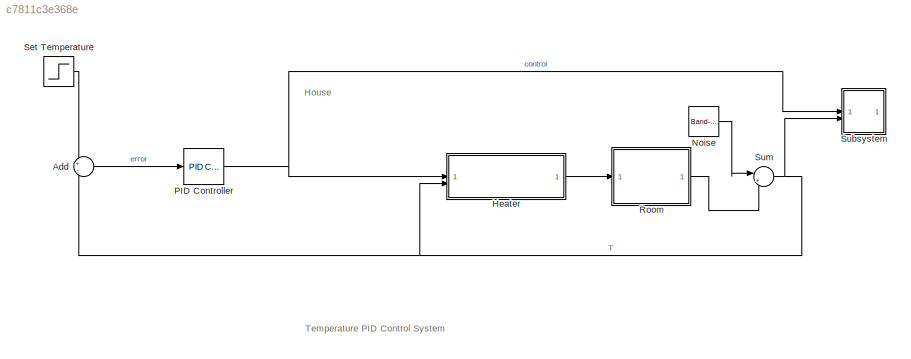
MODEL slx_c7811c3e368e
KIND model
CONFIG AbsTol = auto
CONFIG EnableMultiTasking = off
CONFIG FixedStep = auto
CONFIG MaxStep = auto
CONFIG MinStep = auto
CONFIG RelTol = 1e-3
CONFIG SampleTimeConstraint = Unconstrained
CONFIG SolverName = VariableStepAuto
CONFIG StartTime = 0.0
CONFIG StopTime = 10.0
BLOCK [Sum] Add
  Inputs = +-
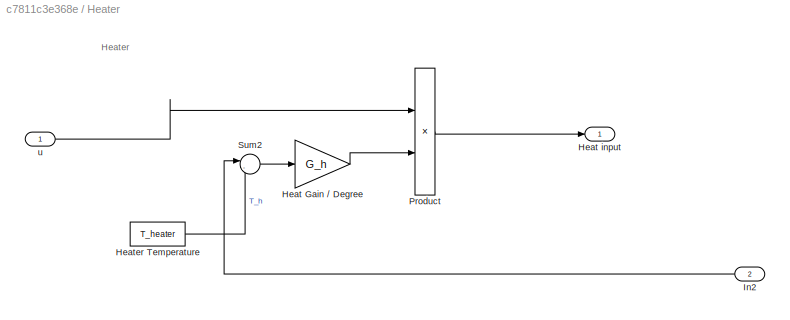
BLOCK [SubSystem] Heater
BLOCK [Gain] Heater/Heat Gain // Degree
  Gain = G_h
BLOCK [Outport] Heater/Heat input
BLOCK [Constant] Heater/Heater Temperature
  Value = T_heater
  VectorParams1D = off
BLOCK [Inport] Heater/In2
  Port = 2
BLOCK [Product] Heater/Product
  RndMeth = Zero
BLOCK [Sum] Heater/Sum2
  Inputs = |-+
BLOCK [Inport] Heater/u
BLOCK [Reference] Noise  REF=simulink/Sources/Band-Limited
White Noise
  NameLocation = left
  SourceBlock = simulink/Sources/Band-Limited\nWhite Noise
  SourceType = Band-Limited White Noise.
BLOCK [Reference] PID Controller  REF=slpidlib/PID Controller
  LibrarySourceBlock = simulink/Continuous/PID Controller
  SourceBlock = slpidlib/PID Controller
  SourceType = PID 1dof
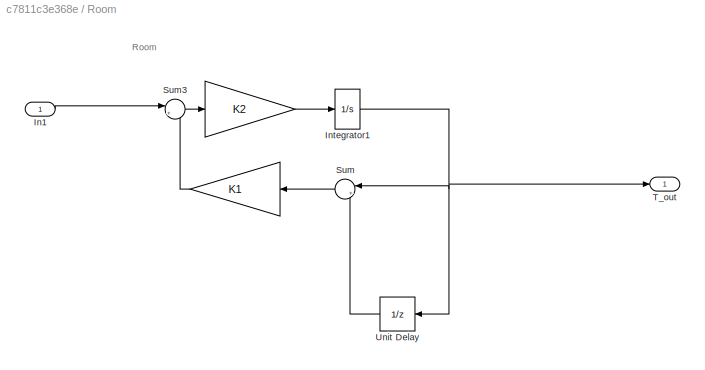
BLOCK [SubSystem] Room
BLOCK [Gain] Room/ 
  Gain = K1
  OutDataTypeStr = Inherit: Same as input
  ParamDataTypeStr = Inherit: Same as input
  SaturateOnIntegerOverflow = on
BLOCK [Gain] Room/  
  Gain = K2
  OutDataTypeStr = Inherit: Same as input
  ParamDataTypeStr = Inherit: Same as input
  SaturateOnIntegerOverflow = on
BLOCK [Inport] Room/In1
BLOCK [Integrator] Room/Integrator1
BLOCK [Sum] Room/Sum
  Inputs = |+-
BLOCK [Sum] Room/Sum3
  InputSameDT = on
  Inputs = |+-
  OutDataTypeStr = Inherit: Same as first input
  SaturateOnIntegerOverflow = on
BLOCK [Outport] Room/T_out
BLOCK [UnitDelay] Room/Unit Delay
  HasFrameUpgradeWarning = on
  NameLocation = top
  SampleTime = 0.001
BLOCK [Step] Set Temperature
  After = setTemp
  NameLocation = left
  SampleTime = 0
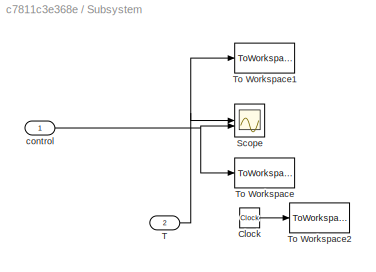
BLOCK [SubSystem] Subsystem
BLOCK [Clock] Subsystem/Clock
BLOCK [Scope] Subsystem/Scope
  Floating = off
  NumInputPorts = 2
  ScopeSpecificationString = Simulink.scopes.TimeScopeBlockCfg('CurrentConfiguration', extmgr.ConfigurationSet(extmgr.Configuration('Core','General UI',true,'DisplayFullSourceName',true),extmgr.Configuration('Core','Source UI',true),extmgr.Configuration('Sources','WiredSimulink',true),extmgr.Configuration('Visuals','Time Domain',true,'SerializedDisplays',{struct('MinYLimReal','-1.07399','MaxYLimReal','6.25965','YLabelReal',''...<+2205ch>
BLOCK [Inport] Subsystem/T
  Port = 2
BLOCK [ToWorkspace] Subsystem/To Workspace
  FixptAsFi = on
  MaxDataPoints = inf
  Save2DSignal = 2-D array (concatenate along first dimension)
  VariableName = control
BLOCK [ToWorkspace] Subsystem/To Workspace1
  FixptAsFi = on
  MaxDataPoints = inf
  Save2DSignal = 2-D array (concatenate along first dimension)
  VariableName = T
BLOCK [ToWorkspace] Subsystem/To Workspace2
  FixptAsFi = on
  MaxDataPoints = inf
  Save2DSignal = 2-D array (concatenate along first dimension)
  VariableName = time
BLOCK [Inport] Subsystem/control
BLOCK [Sum] Sum
  Inputs = |++
ANNOTATION (root): Temperature PID Control System
ANNOTATION (root): House
ANNOTATION Heater: Heater
ANNOTATION Room: Room
LINE Add:1 -> PID Controller:1
LINE Heater/Heat Gain // Degree:1 -> Heater/Product:2
LINE Heater/Heater Temperature:1 -> Heater/Sum2:2
LINE Heater/In2:1 -> Heater/Sum2:1
LINE Heater/Product:1 -> Heater/Heat input:1
LINE Heater/Sum2:1 -> Heater/Heat Gain // Degree:1
LINE Heater/u:1 -> Heater/Product:1
LINE Heater:1 -> Room:1
LINE Noise:1 -> Sum:1
NET PID Controller:1 -> Heater:1, Subsystem:1
LINE Room/  :1 -> Room/Integrator1:1
LINE Room/ :1 -> Room/Sum3:2
LINE Room/In1:1 -> Room/Sum3:1
NET Room/Integrator1:1 -> Room/Sum:1, Room/T_out:1, Room/Unit Delay:1
LINE Room/Sum3:1 -> Room/  :1
LINE Room/Sum:1 -> Room/ :1
LINE Room/Unit Delay:1 -> Room/Sum:2
LINE Room:1 -> Sum:2
LINE Set Temperature:1 -> Add:1
LINE Subsystem/Clock:1 -> Subsystem/To Workspace2:1
NET Subsystem/T:1 -> Subsystem/Scope:1, Subsystem/To Workspace1:1
NET Subsystem/control:1 -> Subsystem/Scope:2, Subsystem/To Workspace:1
NET Sum:1 -> Add:2, Heater:2, Subsystem:2
note: NET lines group one-source signal fan-out (src -> all destinations, sorted); 1:1 wires keep LINE
